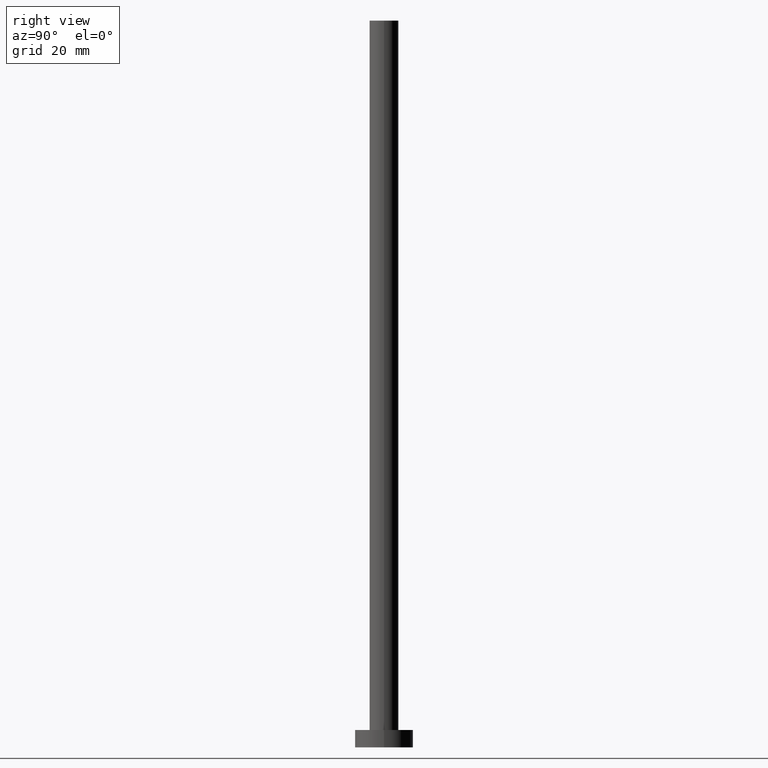
[diagram: clean part render]
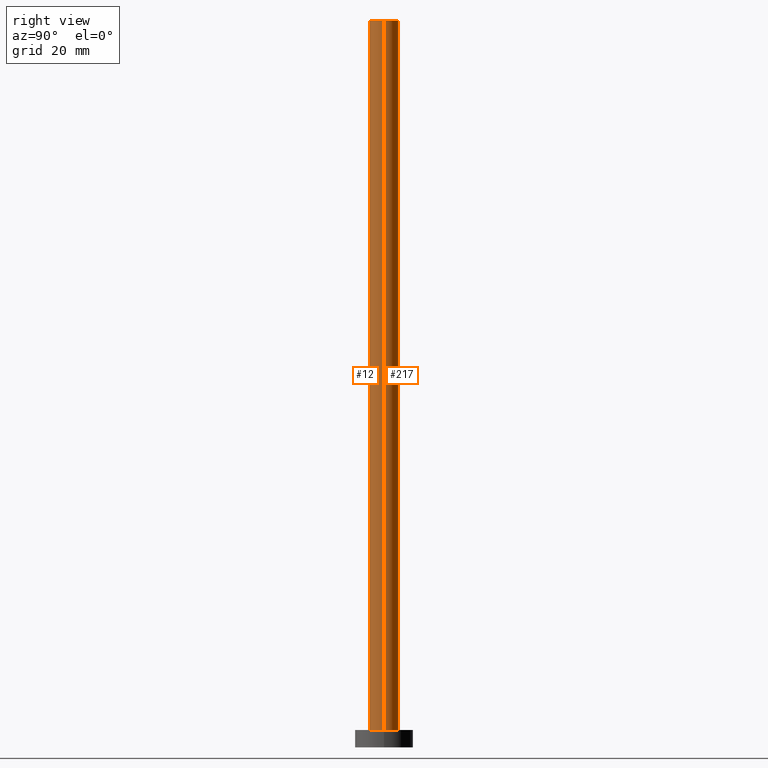
[diagram: same view with one multi-face feature highlighted, each face labeled with its STEP entity id]
A machine part, right view. The highlighted faces form ONE feature: a constant-radius fillet chain: 2 tangent blend faces with common blend radius 2.5 mm. The faces share edges in the B-rep.
Their STEP definitions:
[1] entity #12 (Cylinder):
#10 = DIRECTION ( 'NONE',  ( 1.000000000000000000, 0.000000000000000000, 0.000000000000000000 ) ) ;
#12 = ADVANCED_FACE ( 'NONE', ( #46 ), #204, .T. ) ;
#26 = DIRECTION ( 'NONE',  ( -0.000000000000000000, -0.000000000000000000, -1.000000000000000000 ) ) ;
#31 = CIRCLE ( 'NONE', #219, 2.500000000000000000 ) ;
#32 = ORIENTED_EDGE ( 'NONE', *, *, #225, .T. ) ;
#36 = DIRECTION ( 'NONE',  ( -0.000000000000000000, -0.000000000000000000, -1.000000000000000000 ) ) ;
#39 = EDGE_CURVE ( 'NONE', #108, #135, #56, .T. ) ;
#41 = CARTESIAN_POINT ( 'NONE',  ( 2.500000000000000000, 3.061616997868382648E-16, 125.0000000000000000 ) ) ;
#46 = FACE_OUTER_BOUND ( 'NONE', #96, .T. ) ;
#48 = CARTESIAN_POINT ( 'NONE',  ( 0.000000000000000000, 0.000000000000000000, 125.0000000000000000 ) ) ;
#56 = LINE ( 'NONE', #41, #73 ) ;
#57 = CARTESIAN_POINT ( 'NONE',  ( -2.500000000000000000, 0.000000000000000000, 125.0000000000000000 ) ) ;
#63 = DIRECTION ( 'NONE',  ( 1.000000000000000000, 0.000000000000000000, 0.000000000000000000 ) ) ;
#70 = VERTEX_POINT ( 'NONE', #57 ) ;
#71 = ORIENTED_EDGE ( 'NONE', *, *, #254, .T. ) ;
#73 = VECTOR ( 'NONE', #36, 1000.000000000000000 ) ;
#82 = CARTESIAN_POINT ( 'NONE',  ( 0.000000000000000000, 0.000000000000000000, 125.0000000000000000 ) ) ;
#84 = DIRECTION ( 'NONE',  ( 0.000000000000000000, 0.000000000000000000, 1.000000000000000000 ) ) ;
#87 = AXIS2_PLACEMENT_3D ( 'NONE', #82, #112, #229 ) ;
#91 = CIRCLE ( 'NONE', #194, 2.500000000000000000 ) ;
#96 = EDGE_LOOP ( 'NONE', ( #133, #158, #32, #71 ) ) ;
#104 = CARTESIAN_POINT ( 'NONE',  ( 0.000000000000000000, 0.000000000000000000, 3.000000000000000000 ) ) ;
#108 = VERTEX_POINT ( 'NONE', #196 ) ;
#109 = VERTEX_POINT ( 'NONE', #120 ) ;
#112 = DIRECTION ( 'NONE',  ( -0.000000000000000000, -0.000000000000000000, -1.000000000000000000 ) ) ;
#120 = CARTESIAN_POINT ( 'NONE',  ( -2.500000000000000000, 0.000000000000000000, 3.000000000000000000 ) ) ;
#133 = ORIENTED_EDGE ( 'NONE', *, *, #39, .F. ) ;
#135 = VERTEX_POINT ( 'NONE', #160 ) ;
#158 = ORIENTED_EDGE ( 'NONE', *, *, #207, .F. ) ;
#160 = CARTESIAN_POINT ( 'NONE',  ( 2.500000000000000000, 3.061616997868382648E-16, 3.000000000000000000 ) ) ;
#186 = DIRECTION ( 'NONE',  ( 0.000000000000000000, 0.000000000000000000, 1.000000000000000000 ) ) ;
#194 = AXIS2_PLACEMENT_3D ( 'NONE', #48, #84, #63 ) ;
#196 = CARTESIAN_POINT ( 'NONE',  ( 2.500000000000000000, 3.061616997868382648E-16, 125.0000000000000000 ) ) ;
#204 = CYLINDRICAL_SURFACE ( 'NONE', #87, 2.500000000000000000 ) ;
#207 = EDGE_CURVE ( 'NONE', #70, #108, #91, .T. ) ;
#219 = AXIS2_PLACEMENT_3D ( 'NONE', #104, #186, #10 ) ;
#225 = EDGE_CURVE ( 'NONE', #70, #109, #227, .T. ) ;
#226 = VECTOR ( 'NONE', #26, 1000.000000000000000 ) ;
#227 = LINE ( 'NONE', #246, #226 ) ;
#229 = DIRECTION ( 'NONE',  ( -1.000000000000000000, 0.000000000000000000, 0.000000000000000000 ) ) ;
#246 = CARTESIAN_POINT ( 'NONE',  ( -2.500000000000000000, 0.000000000000000000, 125.0000000000000000 ) ) ;
#254 = EDGE_CURVE ( 'NONE', #109, #135, #31, .T. ) ;
[2] entity #217 (Cylinder):
#3 = ORIENTED_EDGE ( 'NONE', *, *, #49, .F. ) ;
#6 = CARTESIAN_POINT ( 'NONE',  ( 0.000000000000000000, 0.000000000000000000, 3.000000000000000000 ) ) ;
#7 = DIRECTION ( 'NONE',  ( 1.000000000000000000, 0.000000000000000000, 0.000000000000000000 ) ) ;
#20 = DIRECTION ( 'NONE',  ( 1.000000000000000000, 0.000000000000000000, 0.000000000000000000 ) ) ;
#25 = AXIS2_PLACEMENT_3D ( 'NONE', #6, #76, #20 ) ;
#26 = DIRECTION ( 'NONE',  ( -0.000000000000000000, -0.000000000000000000, -1.000000000000000000 ) ) ;
#30 = EDGE_LOOP ( 'NONE', ( #3, #115, #214, #74 ) ) ;
#35 = CIRCLE ( 'NONE', #25, 2.500000000000000000 ) ;
#36 = DIRECTION ( 'NONE',  ( -0.000000000000000000, -0.000000000000000000, -1.000000000000000000 ) ) ;
#39 = EDGE_CURVE ( 'NONE', #108, #135, #56, .T. ) ;
#41 = CARTESIAN_POINT ( 'NONE',  ( 2.500000000000000000, 3.061616997868382648E-16, 125.0000000000000000 ) ) ;
#49 = EDGE_CURVE ( 'NONE', #108, #70, #222, .T. ) ;
#56 = LINE ( 'NONE', #41, #73 ) ;
#57 = CARTESIAN_POINT ( 'NONE',  ( -2.500000000000000000, 0.000000000000000000, 125.0000000000000000 ) ) ;
#70 = VERTEX_POINT ( 'NONE', #57 ) ;
#73 = VECTOR ( 'NONE', #36, 1000.000000000000000 ) ;
#74 = ORIENTED_EDGE ( 'NONE', *, *, #225, .F. ) ;
#76 = DIRECTION ( 'NONE',  ( 0.000000000000000000, 0.000000000000000000, 1.000000000000000000 ) ) ;
#108 = VERTEX_POINT ( 'NONE', #196 ) ;
#109 = VERTEX_POINT ( 'NONE', #120 ) ;
#113 = AXIS2_PLACEMENT_3D ( 'NONE', #131, #189, #206 ) ;
#115 = ORIENTED_EDGE ( 'NONE', *, *, #39, .T. ) ;
#120 = CARTESIAN_POINT ( 'NONE',  ( -2.500000000000000000, 0.000000000000000000, 3.000000000000000000 ) ) ;
#131 = CARTESIAN_POINT ( 'NONE',  ( 0.000000000000000000, 0.000000000000000000, 125.0000000000000000 ) ) ;
#134 = EDGE_CURVE ( 'NONE', #135, #109, #35, .T. ) ;
#135 = VERTEX_POINT ( 'NONE', #160 ) ;
#140 = CARTESIAN_POINT ( 'NONE',  ( 0.000000000000000000, 0.000000000000000000, 125.0000000000000000 ) ) ;
#144 = DIRECTION ( 'NONE',  ( 0.000000000000000000, 0.000000000000000000, 1.000000000000000000 ) ) ;
#146 = FACE_OUTER_BOUND ( 'NONE', #30, .T. ) ;
#160 = CARTESIAN_POINT ( 'NONE',  ( 2.500000000000000000, 3.061616997868382648E-16, 3.000000000000000000 ) ) ;
#165 = CYLINDRICAL_SURFACE ( 'NONE', #113, 2.500000000000000000 ) ;
#189 = DIRECTION ( 'NONE',  ( -0.000000000000000000, -0.000000000000000000, -1.000000000000000000 ) ) ;
#196 = CARTESIAN_POINT ( 'NONE',  ( 2.500000000000000000, 3.061616997868382648E-16, 125.0000000000000000 ) ) ;
#206 = DIRECTION ( 'NONE',  ( -1.000000000000000000, 0.000000000000000000, 0.000000000000000000 ) ) ;
#214 = ORIENTED_EDGE ( 'NONE', *, *, #134, .T. ) ;
#217 = ADVANCED_FACE ( 'NONE', ( #146 ), #165, .T. ) ;
#222 = CIRCLE ( 'NONE', #242, 2.500000000000000000 ) ;
#225 = EDGE_CURVE ( 'NONE', #70, #109, #227, .T. ) ;
#226 = VECTOR ( 'NONE', #26, 1000.000000000000000 ) ;
#227 = LINE ( 'NONE', #246, #226 ) ;
#242 = AXIS2_PLACEMENT_3D ( 'NONE', #140, #144, #7 ) ;
#246 = CARTESIAN_POINT ( 'NONE',  ( -2.500000000000000000, 0.000000000000000000, 125.0000000000000000 ) ) ;